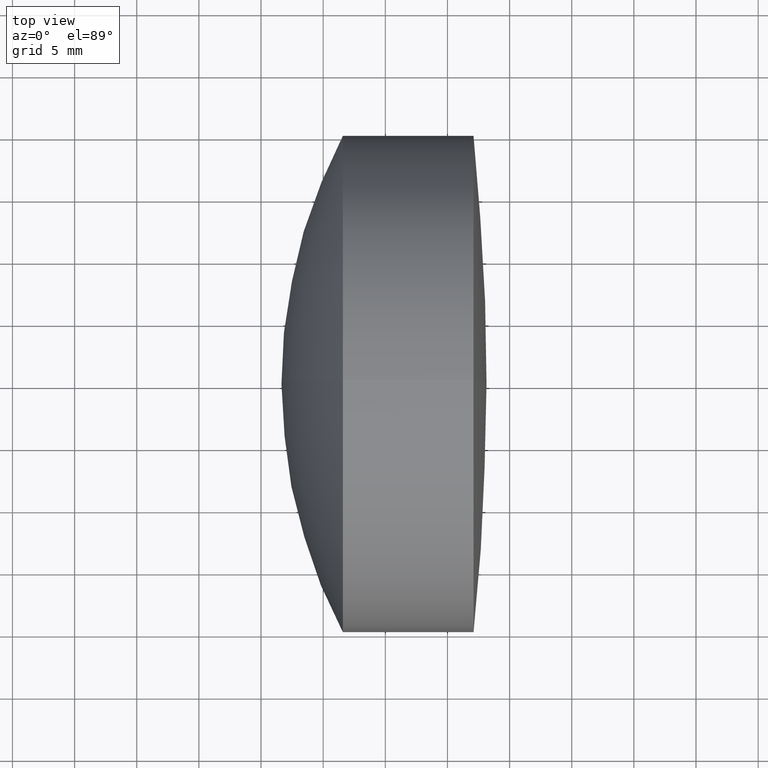
[diagram: clean part render]
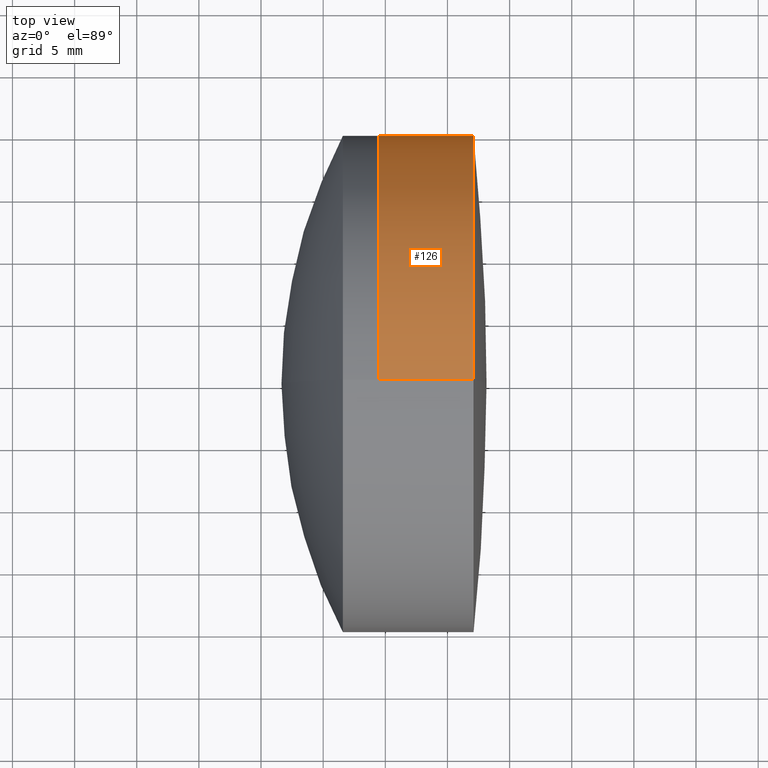
[diagram: same view with one face highlighted and labeled with its STEP entity id]
A machine part, top view. The second image highlights one B-rep face of the part: STEP entity #126.
In plain terms, the highlighted cylindrical surface (partial cylindrical patch) has radius 20 mm, axis along (-1, -0, -0).
Its self-contained STEP definition (entity closure, byte-faithful):
#16 = ORIENTED_EDGE ( 'NONE', *, *, #338, .F. ) ;
#18 = CIRCLE ( 'NONE', #172, 19.99999999999998900 ) ;
#42 = DIRECTION ( 'NONE',  ( -1.000000000000000000, -0.0000000000000000000, -0.0000000000000000000 ) ) ;
#51 = EDGE_CURVE ( 'NONE', #180, #125, #18, .T. ) ;
#64 = DIRECTION ( 'NONE',  ( 0.0000000000000000000, 0.0000000000000000000, 1.000000000000000000 ) ) ;
#71 = LINE ( 'NONE', #109, #232 ) ;
#75 = ORIENTED_EDGE ( 'NONE', *, *, #319, .F. ) ;
#78 = DIRECTION ( 'NONE',  ( -1.000000000000000000, -0.0000000000000000000, -0.0000000000000000000 ) ) ;
#87 = EDGE_CURVE ( 'NONE', #125, #149, #320, .T. ) ;
#95 = VERTEX_POINT ( 'NONE', #301 ) ;
#96 = DIRECTION ( 'NONE',  ( -1.000000000000000000, -0.0000000000000000000, -0.0000000000000000000 ) ) ;
#109 = CARTESIAN_POINT ( 'NONE',  ( -0.5519199926577972300, 0.0000000000000000000, 20.00000000000000400 ) ) ;
#125 = VERTEX_POINT ( 'NONE', #224 ) ;
#126 = ADVANCED_FACE ( 'NONE', ( #229 ), #333, .T. ) ;
#134 = CARTESIAN_POINT ( 'NONE',  ( 259.4867653301869300, 2.449293598294708500E-015, -20.00000000000000700 ) ) ;
#149 = VERTEX_POINT ( 'NONE', #134 ) ;
#152 = ORIENTED_EDGE ( 'NONE', *, *, #51, .T. ) ;
#164 = DIRECTION ( 'NONE',  ( -1.000000000000000000, -0.0000000000000000000, -0.0000000000000000000 ) ) ;
#172 = AXIS2_PLACEMENT_3D ( 'NONE', #265, #164, #293 ) ;
#180 = VERTEX_POINT ( 'NONE', #226 ) ;
#199 = CIRCLE ( 'NONE', #335, 20.00000000000002100 ) ;
#208 = ORIENTED_EDGE ( 'NONE', *, *, #87, .T. ) ;
#224 = CARTESIAN_POINT ( 'NONE',  ( 267.0989338248119800, 2.449293598294706100E-015, -19.99999999999998900 ) ) ;
#226 = CARTESIAN_POINT ( 'NONE',  ( 267.0989338248119800, 0.0000000000000000000, 19.99999999999998900 ) ) ;
#229 = FACE_OUTER_BOUND ( 'NONE', #313, .T. ) ;
#232 = VECTOR ( 'NONE', #78, 1000.000000000000000 ) ;
#234 = AXIS2_PLACEMENT_3D ( 'NONE', #327, #250, #64 ) ;
#250 = DIRECTION ( 'NONE',  ( -1.000000000000000000, -0.0000000000000000000, -0.0000000000000000000 ) ) ;
#256 = CARTESIAN_POINT ( 'NONE',  ( 259.4867653301869300, 0.0000000000000000000, 0.0000000000000000000 ) ) ;
#264 = DIRECTION ( 'NONE',  ( 0.0000000000000000000, 0.0000000000000000000, 1.000000000000000000 ) ) ;
#265 = CARTESIAN_POINT ( 'NONE',  ( 267.0989338248119800, 0.0000000000000000000, 0.0000000000000000000 ) ) ;
#278 = VECTOR ( 'NONE', #96, 1000.000000000000000 ) ;
#293 = DIRECTION ( 'NONE',  ( 0.0000000000000000000, 0.0000000000000000000, 1.000000000000000000 ) ) ;
#301 = CARTESIAN_POINT ( 'NONE',  ( 259.4867653301869300, 0.0000000000000000000, 20.00000000000001400 ) ) ;
#313 = EDGE_LOOP ( 'NONE', ( #152, #208, #75, #16 ) ) ;
#319 = EDGE_CURVE ( 'NONE', #95, #149, #199, .T. ) ;
#320 = LINE ( 'NONE', #337, #278 ) ;
#327 = CARTESIAN_POINT ( 'NONE',  ( -0.5519199926577972300, 0.0000000000000000000, 0.0000000000000000000 ) ) ;
#333 = CYLINDRICAL_SURFACE ( 'NONE', #234, 20.00000000000000400 ) ;
#335 = AXIS2_PLACEMENT_3D ( 'NONE', #256, #42, #264 ) ;
#337 = CARTESIAN_POINT ( 'NONE',  ( -0.5519199926577972300, 2.449293598294706900E-015, -20.00000000000000400 ) ) ;
#338 = EDGE_CURVE ( 'NONE', #180, #95, #71, .T. ) ;